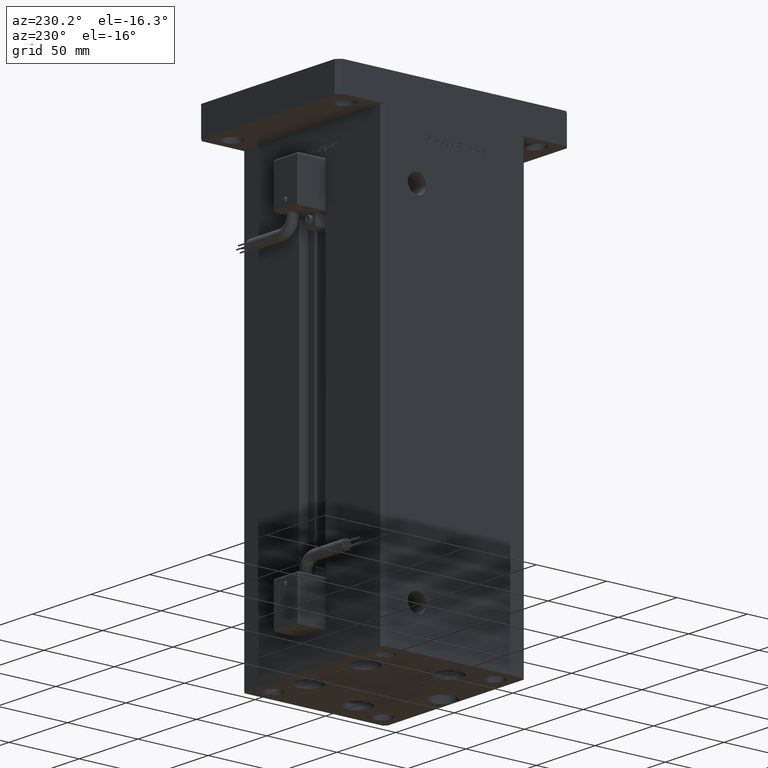
[diagram: clean part render]
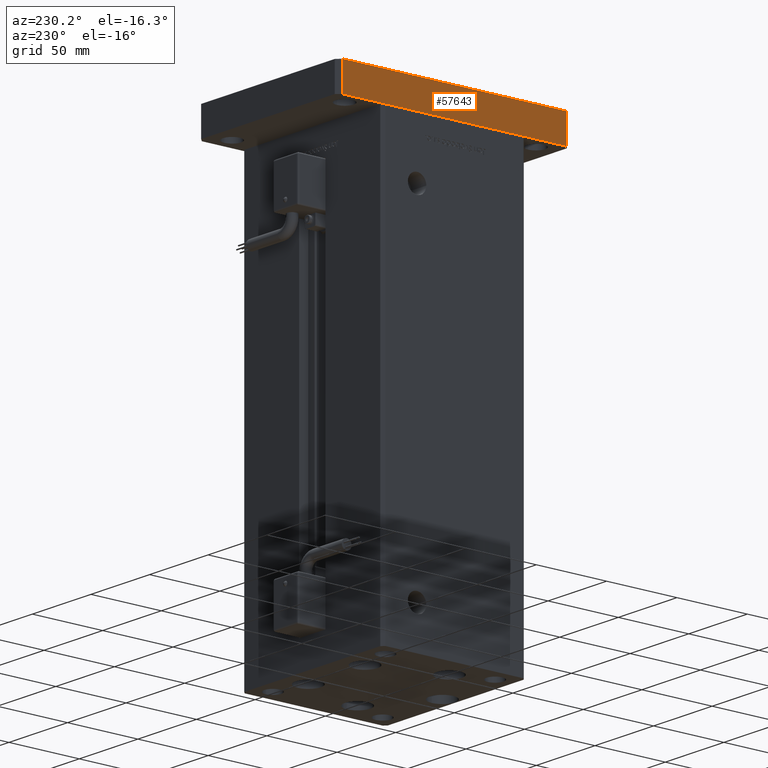
[diagram: same view with one face highlighted and labeled with its STEP entity id]
A machine part, auxiliary view. The second image highlights one B-rep face of the part: STEP entity #57643.
In plain terms, the highlighted planar face has unit normal (1, 0, 0).
Its self-contained STEP definition (entity closure, byte-faithful):
#375 = LINE ( 'NONE', #10045, #9482 ) ;
#903 = ORIENTED_EDGE ( 'NONE', *, *, #2820, .F. ) ;
#2437 = CARTESIAN_POINT ( 'NONE',  ( -60.00000000000002842, 79.50000000000001421, 20.00000000000000000 ) ) ;
#2820 = EDGE_CURVE ( 'NONE', #34944, #30997, #27801, .T. ) ;
#2991 = DIRECTION ( 'NONE',  ( 2.618450529776312260E-16, -1.000000000000000000, 0.000000000000000000 ) ) ;
#6123 = CARTESIAN_POINT ( 'NONE',  ( -60.00000000000002842, 79.50000000000001421, 20.00000000000000000 ) ) ;
#6249 = FACE_OUTER_BOUND ( 'NONE', #19116, .T. ) ;
#9482 = VECTOR ( 'NONE', #26796, 1000.000000000000000 ) ;
#10045 = CARTESIAN_POINT ( 'NONE',  ( -60.00000000000002842, 79.50000000000001421, 20.00000000000000000 ) ) ;
#10243 = ORIENTED_EDGE ( 'NONE', *, *, #40003, .T. ) ;
#10821 = VECTOR ( 'NONE', #50377, 1000.000000000000000 ) ;
#11533 = DIRECTION ( 'NONE',  ( 1.000000000000000000, 2.618450529776312260E-16, -0.000000000000000000 ) ) ;
#12266 = ORIENTED_EDGE ( 'NONE', *, *, #20455, .T. ) ;
#15008 = ORIENTED_EDGE ( 'NONE', *, *, #26311, .F. ) ;
#15908 = VECTOR ( 'NONE', #2991, 1000.000000000000000 ) ;
#16044 = VERTEX_POINT ( 'NONE', #28125 ) ;
#16198 = VERTEX_POINT ( 'NONE', #53616 ) ;
#19116 = EDGE_LOOP ( 'NONE', ( #10243, #15008, #903, #12266 ) ) ;
#20058 = DIRECTION ( 'NONE',  ( -2.618450529776312260E-16, 1.000000000000000000, 0.000000000000000000 ) ) ;
#20455 = EDGE_CURVE ( 'NONE', #34944, #16198, #375, .T. ) ;
#22819 = DIRECTION ( 'NONE',  ( -0.000000000000000000, -0.000000000000000000, -1.000000000000000000 ) ) ;
#26311 = EDGE_CURVE ( 'NONE', #30997, #16044, #26925, .T. ) ;
#26796 = DIRECTION ( 'NONE',  ( -0.000000000000000000, -0.000000000000000000, -1.000000000000000000 ) ) ;
#26925 = LINE ( 'NONE', #40671, #38905 ) ;
#27801 = LINE ( 'NONE', #45116, #10821 ) ;
#28125 = CARTESIAN_POINT ( 'NONE',  ( -59.99999999999998579, -79.50000000000002842, 0.000000000000000000 ) ) ;
#29682 = LINE ( 'NONE', #47563, #15908 ) ;
#30997 = VERTEX_POINT ( 'NONE', #54753 ) ;
#34944 = VERTEX_POINT ( 'NONE', #6123 ) ;
#38905 = VECTOR ( 'NONE', #22819, 1000.000000000000000 ) ;
#40003 = EDGE_CURVE ( 'NONE', #16198, #16044, #29682, .T. ) ;
#40671 = CARTESIAN_POINT ( 'NONE',  ( -59.99999999999998579, -79.50000000000002842, 20.00000000000000000 ) ) ;
#41676 = AXIS2_PLACEMENT_3D ( 'NONE', #2437, #11533, #20058 ) ;
#42042 = PLANE ( 'NONE',  #41676 ) ;
#45116 = CARTESIAN_POINT ( 'NONE',  ( -60.00000000000002842, 79.50000000000001421, 20.00000000000000000 ) ) ;
#47563 = CARTESIAN_POINT ( 'NONE',  ( -60.00000000000002842, 79.50000000000001421, 0.000000000000000000 ) ) ;
#50377 = DIRECTION ( 'NONE',  ( 2.618450529776312260E-16, -1.000000000000000000, 0.000000000000000000 ) ) ;
#53616 = CARTESIAN_POINT ( 'NONE',  ( -60.00000000000002842, 79.50000000000001421, 0.000000000000000000 ) ) ;
#54753 = CARTESIAN_POINT ( 'NONE',  ( -59.99999999999998579, -79.50000000000002842, 20.00000000000000000 ) ) ;
#57643 = ADVANCED_FACE ( 'NONE', ( #6249 ), #42042, .F. ) ;